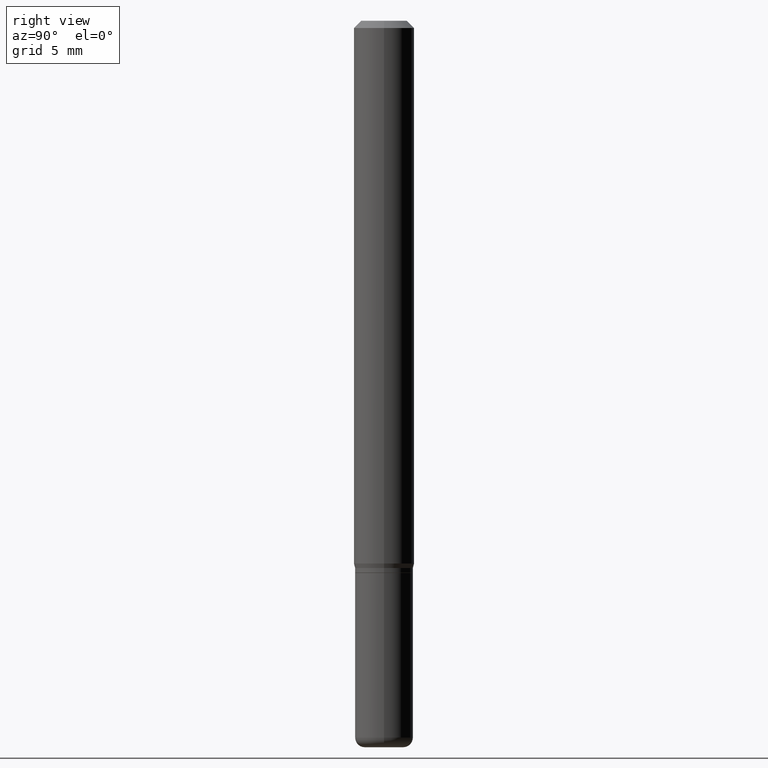
[diagram: clean part render]
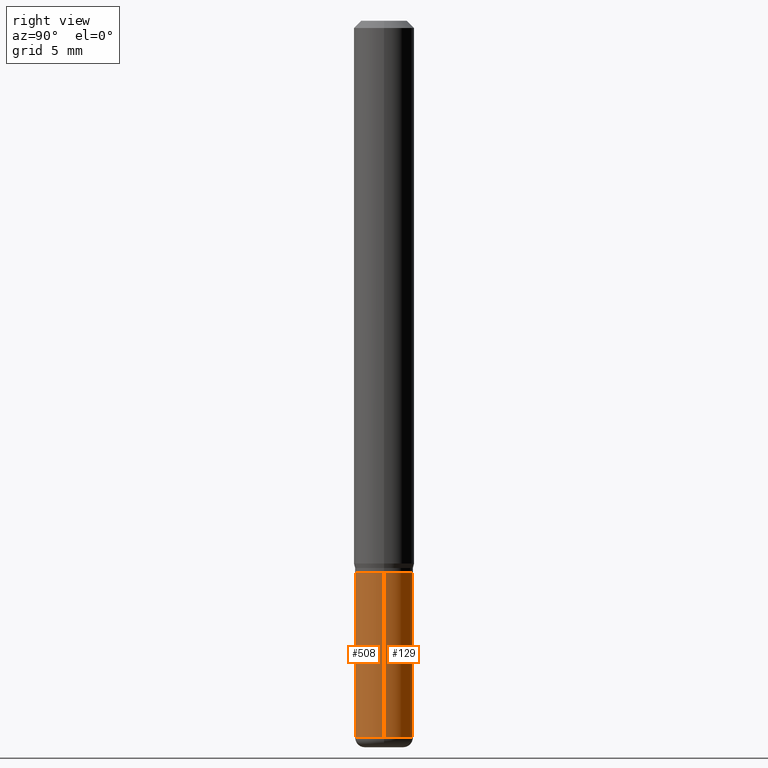
[diagram: same view with one multi-face feature highlighted, each face labeled with its STEP entity id]
A machine part, right view. The highlighted faces form ONE feature: a constant-radius fillet chain: 2 tangent blend faces with common blend radius 1.524 mm. The faces share edges in the B-rep.
Their STEP definitions:
[1] entity #129 (Cylinder):
#4 = CARTESIAN_POINT ( 'NONE',  ( -0.06000000000000001860, 4.263256414560602437E-16, -2.951361054152944114E-30 ) ) ;
#7 = AXIS2_PLACEMENT_3D ( 'NONE', #341, #21, #305 ) ;
#19 = FACE_OUTER_BOUND ( 'NONE', #45, .T. ) ;
#21 = DIRECTION ( 'NONE',  ( -2.445468806185136597E-29, 3.491481338843145583E-15, 1.000000000000000000 ) ) ;
#31 = LINE ( 'NONE', #357, #335 ) ;
#45 = EDGE_LOOP ( 'NONE', ( #370, #256, #57, #101 ) ) ;
#57 = ORIENTED_EDGE ( 'NONE', *, *, #438, .F. ) ;
#66 = VERTEX_POINT ( 'NONE', #176 ) ;
#77 = AXIS2_PLACEMENT_3D ( 'NONE', #182, #495, #309 ) ;
#79 = DIRECTION ( 'NONE',  ( -2.445468806185136877E-29, 3.491481338843145188E-15, 1.000000000000000000 ) ) ;
#99 = CYLINDRICAL_SURFACE ( 'NONE', #77, 0.06000000000000001860 ) ;
#101 = ORIENTED_EDGE ( 'NONE', *, *, #141, .F. ) ;
#123 = AXIS2_PLACEMENT_3D ( 'NONE', #128, #293, #402 ) ;
#128 = CARTESIAN_POINT ( 'NONE',  ( 2.787834439051055989E-29, -3.980288726281186698E-15, -1.140000000000000124 ) ) ;
#129 = ADVANCED_FACE ( 'NONE', ( #19 ), #99, .T. ) ;
#133 = VERTEX_POINT ( 'NONE', #259 ) ;
#141 = EDGE_CURVE ( 'NONE', #66, #467, #31, .T. ) ;
#158 = VECTOR ( 'NONE', #323, 39.37007874015748143 ) ;
#165 = LINE ( 'NONE', #4, #158 ) ;
#176 = CARTESIAN_POINT ( 'NONE',  ( 0.06000000000000003247, -5.586370142149031512E-15, -1.479999999999999982 ) ) ;
#178 = VERTEX_POINT ( 'NONE', #314 ) ;
#182 = CARTESIAN_POINT ( 'NONE',  ( 0.000000000000000000, 0.000000000000000000, 0.000000000000000000 ) ) ;
#186 = CIRCLE ( 'NONE', #123, 0.05999999999999999778 ) ;
#256 = ORIENTED_EDGE ( 'NONE', *, *, #415, .T. ) ;
#259 = CARTESIAN_POINT ( 'NONE',  ( -0.05999999999999999778, -4.147514912428460298E-15, -1.140000000000000124 ) ) ;
#261 = CARTESIAN_POINT ( 'NONE',  ( 0.05999999999999999778, -4.399266486942362543E-15, -1.140000000000000124 ) ) ;
#293 = DIRECTION ( 'NONE',  ( -2.445468806185136597E-29, 3.491481338843145583E-15, 1.000000000000000000 ) ) ;
#305 = DIRECTION ( 'NONE',  ( 1.000000000000000000, -6.982962677686264344E-15, 0.000000000000000000 ) ) ;
#309 = DIRECTION ( 'NONE',  ( 1.000000000000000000, -6.982962677686266711E-15, 4.876176775795935793E-29 ) ) ;
#314 = CARTESIAN_POINT ( 'NONE',  ( -0.06000000000000003247, -4.147514912428460298E-15, -1.479999999999999982 ) ) ;
#323 = DIRECTION ( 'NONE',  ( -2.445468806185136877E-29, 3.491481338843145188E-15, 1.000000000000000000 ) ) ;
#335 = VECTOR ( 'NONE', #79, 39.37007874015748143 ) ;
#341 = CARTESIAN_POINT ( 'NONE',  ( 3.619293833154002365E-29, -5.167392381487854879E-15, -1.479999999999999982 ) ) ;
#357 = CARTESIAN_POINT ( 'NONE',  ( 0.06000000000000001860, -4.189777606611761407E-16, 2.925706065477562457E-30 ) ) ;
#370 = ORIENTED_EDGE ( 'NONE', *, *, #501, .T. ) ;
#402 = DIRECTION ( 'NONE',  ( 1.000000000000000000, -6.982962677686268288E-15, 0.000000000000000000 ) ) ;
#415 = EDGE_CURVE ( 'NONE', #178, #133, #165, .T. ) ;
#438 = EDGE_CURVE ( 'NONE', #467, #133, #186, .T. ) ;
#467 = VERTEX_POINT ( 'NONE', #261 ) ;
#482 = CIRCLE ( 'NONE', #7, 0.06000000000000003247 ) ;
#495 = DIRECTION ( 'NONE',  ( -2.445468806185136597E-29, 3.491481338843145583E-15, 1.000000000000000000 ) ) ;
#501 = EDGE_CURVE ( 'NONE', #66, #178, #482, .T. ) ;
[2] entity #508 (Cylinder):
#2 = CARTESIAN_POINT ( 'NONE',  ( 3.619293833154002365E-29, -5.167392381487854879E-15, -1.479999999999999982 ) ) ;
#4 = CARTESIAN_POINT ( 'NONE',  ( -0.06000000000000001860, 4.263256414560602437E-16, -2.951361054152944114E-30 ) ) ;
#18 = DIRECTION ( 'NONE',  ( 1.000000000000000000, -6.982962677686266711E-15, 4.876176775795935793E-29 ) ) ;
#31 = LINE ( 'NONE', #357, #335 ) ;
#32 = EDGE_CURVE ( 'NONE', #133, #467, #40, .T. ) ;
#40 = CIRCLE ( 'NONE', #122, 0.05999999999999999778 ) ;
#66 = VERTEX_POINT ( 'NONE', #176 ) ;
#79 = DIRECTION ( 'NONE',  ( -2.445468806185136877E-29, 3.491481338843145188E-15, 1.000000000000000000 ) ) ;
#80 = AXIS2_PLACEMENT_3D ( 'NONE', #339, #416, #18 ) ;
#122 = AXIS2_PLACEMENT_3D ( 'NONE', #148, #175, #312 ) ;
#133 = VERTEX_POINT ( 'NONE', #259 ) ;
#141 = EDGE_CURVE ( 'NONE', #66, #467, #31, .T. ) ;
#148 = CARTESIAN_POINT ( 'NONE',  ( 2.787834439051055989E-29, -3.980288726281186698E-15, -1.140000000000000124 ) ) ;
#158 = VECTOR ( 'NONE', #323, 39.37007874015748143 ) ;
#165 = LINE ( 'NONE', #4, #158 ) ;
#175 = DIRECTION ( 'NONE',  ( -2.445468806185136597E-29, 3.491481338843145583E-15, 1.000000000000000000 ) ) ;
#176 = CARTESIAN_POINT ( 'NONE',  ( 0.06000000000000003247, -5.586370142149031512E-15, -1.479999999999999982 ) ) ;
#178 = VERTEX_POINT ( 'NONE', #314 ) ;
#189 = ORIENTED_EDGE ( 'NONE', *, *, #141, .T. ) ;
#198 = DIRECTION ( 'NONE',  ( -2.445468806185136597E-29, 3.491481338843145583E-15, 1.000000000000000000 ) ) ;
#210 = CYLINDRICAL_SURFACE ( 'NONE', #80, 0.06000000000000001860 ) ;
#246 = ORIENTED_EDGE ( 'NONE', *, *, #32, .F. ) ;
#259 = CARTESIAN_POINT ( 'NONE',  ( -0.05999999999999999778, -4.147514912428460298E-15, -1.140000000000000124 ) ) ;
#260 = ORIENTED_EDGE ( 'NONE', *, *, #363, .T. ) ;
#261 = CARTESIAN_POINT ( 'NONE',  ( 0.05999999999999999778, -4.399266486942362543E-15, -1.140000000000000124 ) ) ;
#312 = DIRECTION ( 'NONE',  ( 1.000000000000000000, -6.982962677686268288E-15, 0.000000000000000000 ) ) ;
#314 = CARTESIAN_POINT ( 'NONE',  ( -0.06000000000000003247, -4.147514912428460298E-15, -1.479999999999999982 ) ) ;
#323 = DIRECTION ( 'NONE',  ( -2.445468806185136877E-29, 3.491481338843145188E-15, 1.000000000000000000 ) ) ;
#335 = VECTOR ( 'NONE', #79, 39.37007874015748143 ) ;
#339 = CARTESIAN_POINT ( 'NONE',  ( 0.000000000000000000, 0.000000000000000000, 0.000000000000000000 ) ) ;
#357 = CARTESIAN_POINT ( 'NONE',  ( 0.06000000000000001860, -4.189777606611761407E-16, 2.925706065477562457E-30 ) ) ;
#362 = DIRECTION ( 'NONE',  ( 1.000000000000000000, -6.982962677686264344E-15, 0.000000000000000000 ) ) ;
#363 = EDGE_CURVE ( 'NONE', #178, #66, #499, .T. ) ;
#392 = EDGE_LOOP ( 'NONE', ( #460, #260, #189, #246 ) ) ;
#408 = FACE_OUTER_BOUND ( 'NONE', #392, .T. ) ;
#415 = EDGE_CURVE ( 'NONE', #178, #133, #165, .T. ) ;
#416 = DIRECTION ( 'NONE',  ( -2.445468806185136597E-29, 3.491481338843145583E-15, 1.000000000000000000 ) ) ;
#460 = ORIENTED_EDGE ( 'NONE', *, *, #415, .F. ) ;
#467 = VERTEX_POINT ( 'NONE', #261 ) ;
#499 = CIRCLE ( 'NONE', #517, 0.06000000000000003247 ) ;
#508 = ADVANCED_FACE ( 'NONE', ( #408 ), #210, .T. ) ;
#517 = AXIS2_PLACEMENT_3D ( 'NONE', #2, #198, #362 ) ;